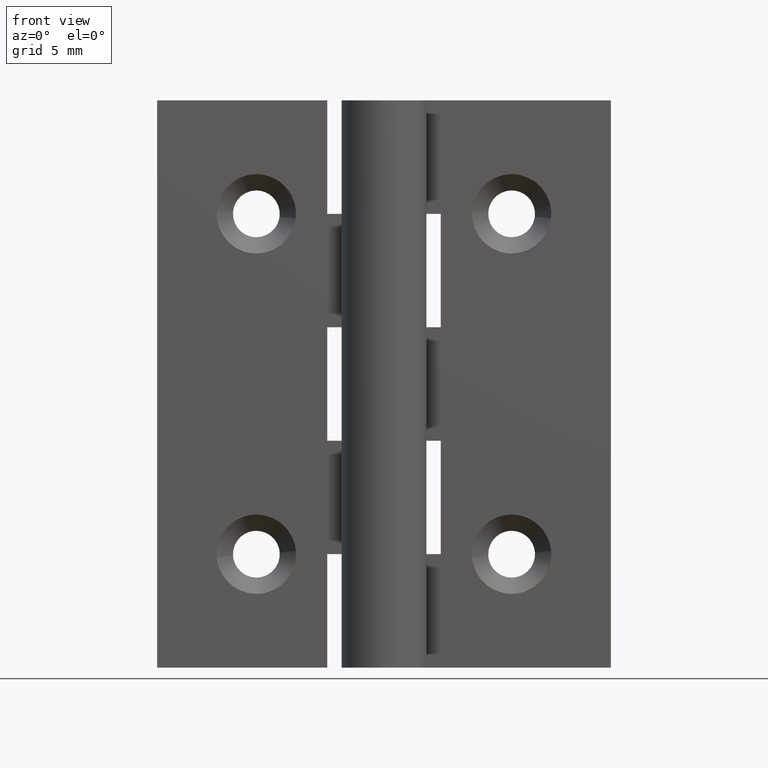
[diagram: clean part render]
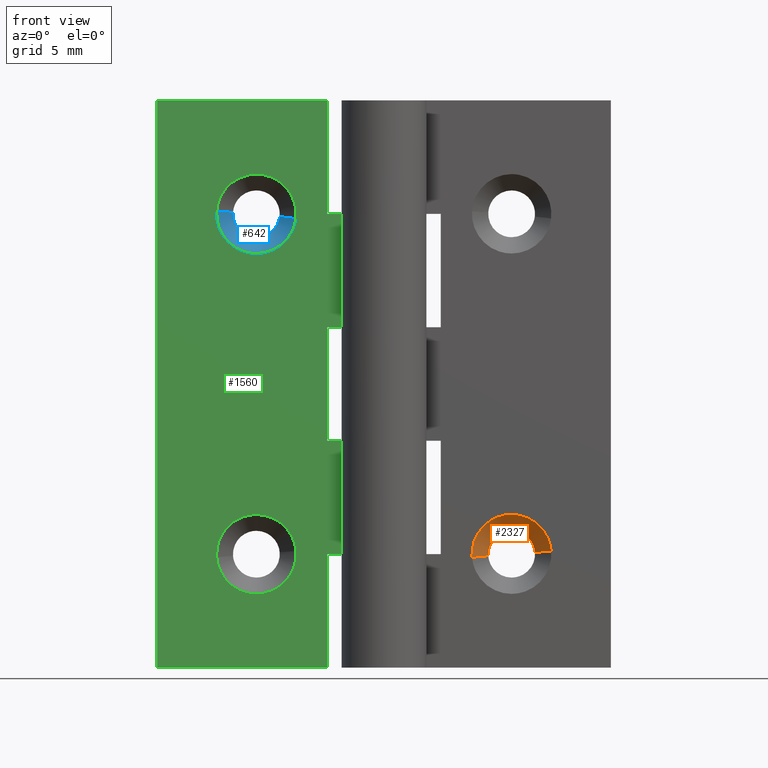
[diagram: same view with three faces highlighted in distinct colors, each labeled with its STEP entity id]
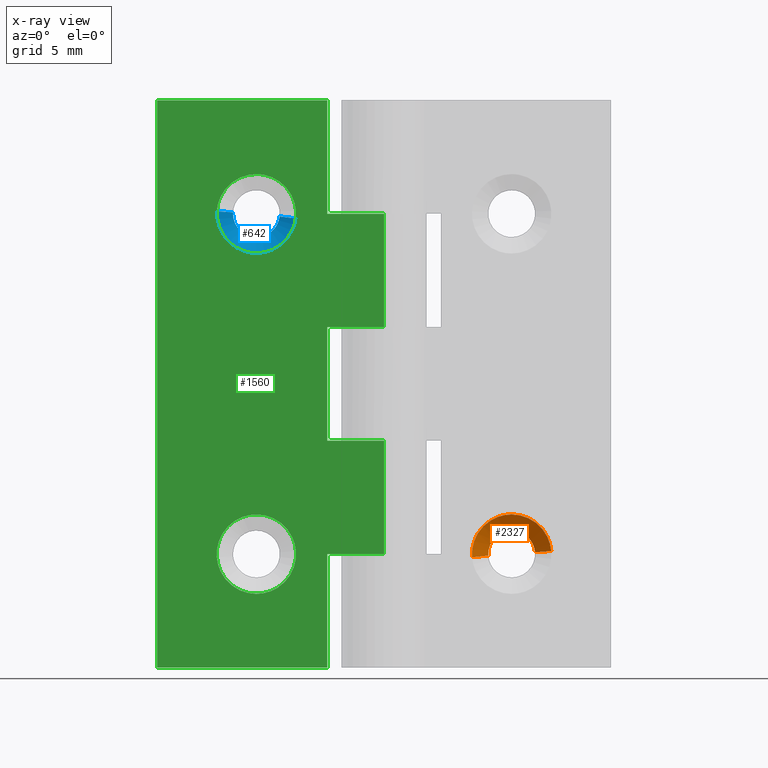
[diagram: x-ray of the same camera — body ghosted, the three highlighted faces saturated]
A machine part, front view with three faces highlighted in distinct colors.
The next image is the same camera in x-ray (body ghosted, the three faces saturated) — at least one of them is partly hidden behind the body in this view.
Their STEP definitions:

[orange] entity #2327 — the highlighted face is a freeform B-spline surface patch.
#2132=CARTESIAN_POINT('',(7.353077569980141,2.649999999998791,7.899270116164847));
#2133=VERTEX_POINT('',#2132);
#2177=CARTESIAN_POINT('',(10.644913600664211,2.649999999988415,8.129457508040826));
#2178=VERTEX_POINT('',#2177);
#2194=CARTESIAN_POINT('',(9.0,2.650000000000000,9.650000000000000));
#2195=VERTEX_POINT('',#2194);
#2196=CARTESIAN_POINT('',(9.0,2.650000000000000,9.650000000000000));
#2197=CARTESIAN_POINT('',(10.525244311070530,2.650000000000000,9.650000000000002));
#2198=CARTESIAN_POINT('',(10.644913600664214,2.649999999988415,8.129457508040826));
#2206=(BOUNDED_CURVE()B_SPLINE_CURVE(2,(#2196,#2197,#2198),.UNSPECIFIED.,.F.,.U.)B_SPLINE_CURVE_WITH_KNOTS((3,3),(0.0,0.236331300614222),.UNSPECIFIED.)CURVE()GEOMETRIC_REPRESENTATION_ITEM()RATIONAL_B_SPLINE_CURVE((1.0,0.723120658626923,0.969723356133114))REPRESENTATION_ITEM(''));
#2207=EDGE_CURVE('',#2195,#2178,#2206,.T.);
#2209=CARTESIAN_POINT('',(7.353077569980141,2.649999999998791,7.899270116164847));
#2210=CARTESIAN_POINT('',(7.349999999999998,2.650000000000000,7.949588044045367));
#2211=CARTESIAN_POINT('',(7.349999999999999,2.650000000000000,8.0));
#2212=CARTESIAN_POINT('',(7.349999999999999,2.650000000000000,9.650000000000000));
#2213=CARTESIAN_POINT('',(9.0,2.650000000000000,9.650000000000000));
#2221=(BOUNDED_CURVE()B_SPLINE_CURVE(2,(#2209,#2210,#2211,#2212,#2213),.UNSPECIFIED.,.F.,.U.)B_SPLINE_CURVE_WITH_KNOTS((3,2,3),(0.739332983866061,0.750000000000000,1.0),.UNSPECIFIED.)CURVE()GEOMETRIC_REPRESENTATION_ITEM()RATIONAL_B_SPLINE_CURVE((0.976072088017753,0.987502813237582,1.0,0.707106781186548,1.0))REPRESENTATION_ITEM(''));
#2222=EDGE_CURVE('',#2133,#2195,#2221,.T.);
#2261=CARTESIAN_POINT('',(10.616252227314840,2.678750000000000,8.127201808948769));
#2262=CARTESIAN_POINT('',(10.489050418366066,2.678750000000001,9.743454036263605));
#2263=CARTESIAN_POINT('',(8.872798191051231,2.678750000000000,9.616252227314835));
#2264=CARTESIAN_POINT('',(7.256545963736396,2.678750000000001,9.489050418366064));
#2265=CARTESIAN_POINT('',(7.383747772685166,2.678750000000000,7.872798191051230));
#2266=CARTESIAN_POINT('',(11.820746442131210,1.470531250000000,8.221997559515197));
#2267=CARTESIAN_POINT('',(11.598748882616009,1.470531250000000,11.042744001646401));
#2268=CARTESIAN_POINT('',(8.778002440484803,1.470531250000000,10.820746442131210));
#2269=CARTESIAN_POINT('',(5.957255998353596,1.470531250000000,10.598748882616007));
#2270=CARTESIAN_POINT('',(6.179253557868795,1.470531250000000,7.778002440484802));
#2278=(BOUNDED_SURFACE()B_SPLINE_SURFACE(2,1,((#2261,#2266),(#2262,#2267),(#2263,#2268),(#2264,#2269),(#2265,#2270)),.UNSPECIFIED.,.F.,.F.,.U.)B_SPLINE_SURFACE_WITH_KNOTS((3,2,3),(2,2),(0.0,4.688017322243393,9.376034644486786),(0.0,1.0),.UNSPECIFIED.)GEOMETRIC_REPRESENTATION_ITEM()RATIONAL_B_SPLINE_SURFACE(((1.0,1.0),(0.707106781186548,0.707106781186548),(1.0,1.0),(0.707106781186548,0.707106781186548),(1.0,1.0)))REPRESENTATION_ITEM('')SURFACE());
#2279=ORIENTED_EDGE('',*,*,#2207,.T.);
#2280=CARTESIAN_POINT('',(11.791368534464549,1.499999999970239,8.219685468267475));
#2281=VERTEX_POINT('',#2280);
#2282=CARTESIAN_POINT('',(10.644913600664211,2.649999999988415,8.129457508040826));
#2283=CARTESIAN_POINT('',(11.791368534464549,1.499999999970239,8.219685468267475));
#2284=QUASI_UNIFORM_CURVE('',1,(#2282,#2283),.UNSPECIFIED.,.F.,.U.);
#2285=EDGE_CURVE('',#2178,#2281,#2284,.T.);
#2286=ORIENTED_EDGE('',*,*,#2285,.T.);
#2287=CARTESIAN_POINT('',(9.0,1.500000000000000,10.800000000000001));
#2288=VERTEX_POINT('',#2287);
#2289=CARTESIAN_POINT('',(9.0,1.500000000000000,10.800000000000001));
#2290=CARTESIAN_POINT('',(11.588293376220381,1.500000000000000,10.800000000000001));
#2291=CARTESIAN_POINT('',(11.791368534464542,1.499999999970240,8.219685468267475));
#2299=(BOUNDED_CURVE()B_SPLINE_CURVE(2,(#2289,#2290,#2291),.UNSPECIFIED.,.F.,.U.)B_SPLINE_CURVE_WITH_KNOTS((3,3),(0.0,0.236331300604864),.UNSPECIFIED.)CURVE()GEOMETRIC_REPRESENTATION_ITEM()RATIONAL_B_SPLINE_CURVE((1.0,0.723120658637887,0.969723356113585))REPRESENTATION_ITEM(''));
#2300=EDGE_CURVE('',#2288,#2281,#2299,.T.);
#2301=ORIENTED_EDGE('',*,*,#2300,.F.);
#2302=CARTESIAN_POINT('',(6.208631465535451,1.499999999970238,7.780314531732524));
#2303=VERTEX_POINT('',#2302);
#2304=CARTESIAN_POINT('',(6.208631465535451,1.499999999970238,7.780314531732524));
#2305=CARTESIAN_POINT('',(6.199999999999999,1.500000000000000,7.889987700150297));
#2306=CARTESIAN_POINT('',(6.199999999999999,1.500000000000000,8.0));
#2307=CARTESIAN_POINT('',(6.199999999999999,1.500000000000000,10.800000000000001));
#2308=CARTESIAN_POINT('',(9.0,1.500000000000000,10.800000000000001));
#2316=(BOUNDED_CURVE()B_SPLINE_CURVE(2,(#2304,#2305,#2306,#2307,#2308),.UNSPECIFIED.,.F.,.U.)B_SPLINE_CURVE_WITH_KNOTS((3,2,3),(0.736331300604864,0.750000000000000,1.0),.UNSPECIFIED.)CURVE()GEOMETRIC_REPRESENTATION_ITEM()RATIONAL_B_SPLINE_CURVE((0.969723356113585,0.983986122548661,1.0,0.707106781186547,1.0))REPRESENTATION_ITEM(''));
#2317=EDGE_CURVE('',#2303,#2288,#2316,.T.);
#2318=ORIENTED_EDGE('',*,*,#2317,.F.);
#2319=CARTESIAN_POINT('',(7.353077569980141,2.649999999998791,7.899270116164847));
#2320=CARTESIAN_POINT('',(6.208631465535451,1.499999999970238,7.780314531732524));
#2321=QUASI_UNIFORM_CURVE('',1,(#2319,#2320),.UNSPECIFIED.,.F.,.U.);
#2322=EDGE_CURVE('',#2133,#2303,#2321,.T.);
#2323=ORIENTED_EDGE('',*,*,#2322,.F.);
#2324=ORIENTED_EDGE('',*,*,#2222,.T.);
#2325=EDGE_LOOP('',(#2279,#2286,#2301,#2318,#2323,#2324));
#2326=FACE_OUTER_BOUND('',#2325,.T.);
#2327=ADVANCED_FACE('',(#2326),#2278,.F.);

[blue] entity #642 — the highlighted face is a freeform B-spline surface patch.
#321=CARTESIAN_POINT('',(-7.361534281498922,2.649999999982358,31.805243512675531));
#322=VERTEX_POINT('',#321);
#388=CARTESIAN_POINT('',(-10.646922417411650,2.649999999970862,32.100730090455343));
#389=VERTEX_POINT('',#388);
#403=CARTESIAN_POINT('',(-9.0,2.650000000000000,30.350000000000001));
#404=VERTEX_POINT('',#403);
#405=CARTESIAN_POINT('',(-10.646922417411643,2.649999999970862,32.100730090455343));
#406=CARTESIAN_POINT('',(-10.650000000000002,2.650000000000000,32.050412059664353));
#407=CARTESIAN_POINT('',(-10.650000000000000,2.650000000000000,32.0));
#408=CARTESIAN_POINT('',(-10.650000000000000,2.650000000000000,30.350000000000001));
#409=CARTESIAN_POINT('',(-9.0,2.650000000000000,30.350000000000001));
#417=(BOUNDED_CURVE()B_SPLINE_CURVE(2,(#405,#406,#407,#408,#409),.UNSPECIFIED.,.F.,.U.)B_SPLINE_CURVE_WITH_KNOTS((3,2,3),(0.739332962195649,0.750000000000000,1.0),.UNSPECIFIED.)CURVE()GEOMETRIC_REPRESENTATION_ITEM()RATIONAL_B_SPLINE_CURVE((0.976072041573930,0.987502787849115,1.0,0.707106781186548,1.0))REPRESENTATION_ITEM(''));
#418=EDGE_CURVE('',#389,#404,#417,.T.);
#420=CARTESIAN_POINT('',(-9.0,2.650000000000000,30.350000000000001));
#421=CARTESIAN_POINT('',(-7.534512032430169,2.650000000000000,30.350000000000009));
#422=CARTESIAN_POINT('',(-7.361534281498922,2.649999999982358,31.805243512675531));
#430=(BOUNDED_CURVE()B_SPLINE_CURVE(2,(#420,#421,#422),.UNSPECIFIED.,.F.,.U.)B_SPLINE_CURVE_WITH_KNOTS((3,3),(0.0,0.229562473487024),.UNSPECIFIED.)CURVE()GEOMETRIC_REPRESENTATION_ITEM()RATIONAL_B_SPLINE_CURVE((1.0,0.731050832886431,0.956026754131788))REPRESENTATION_ITEM(''));
#431=EDGE_CURVE('',#404,#322,#430,.T.);
#538=CARTESIAN_POINT('',(-6.219573317274596,1.499999988088149,31.669504116977279));
#539=VERTEX_POINT('',#538);
#540=CARTESIAN_POINT('',(-7.361534281498922,2.649999999982358,31.805243512675531));
#541=CARTESIAN_POINT('',(-6.219573317274596,1.499999988088149,31.669504116977279));
#542=QUASI_UNIFORM_CURVE('',1,(#540,#541),.UNSPECIFIED.,.F.,.U.);
#543=EDGE_CURVE('',#322,#539,#542,.T.);
#562=CARTESIAN_POINT('',(-11.794777435587550,1.499999999988166,32.170935910788053));
#563=VERTEX_POINT('',#562);
#577=CARTESIAN_POINT('',(-10.646922417411650,2.649999999970862,32.100730090455343));
#578=CARTESIAN_POINT('',(-11.794777435587550,1.499999999988166,32.170935910788053));
#579=QUASI_UNIFORM_CURVE('',1,(#577,#578),.UNSPECIFIED.,.F.,.U.);
#580=EDGE_CURVE('',#389,#563,#579,.T.);
#588=CARTESIAN_POINT('',(-10.618226041941449,2.678750000000000,32.098974944720887));
#589=CARTESIAN_POINT('',(-10.717200986662338,2.678750000000001,30.480748902779439));
#590=CARTESIAN_POINT('',(-9.098974944720887,2.678750000000000,30.381773958058549));
#591=CARTESIAN_POINT('',(-7.570797615476458,2.678750000000000,30.288306628547389));
#592=CARTESIAN_POINT('',(-7.390083305382908,2.678750000000000,31.808636997062731));
#593=CARTESIAN_POINT('',(-11.824191220422220,1.470531250000000,32.172734934847007));
#594=CARTESIAN_POINT('',(-11.996926155269238,1.470531250000000,29.348543714424792));
#595=CARTESIAN_POINT('',(-9.172734934847018,1.470531250000000,29.175808779577778));
#596=CARTESIAN_POINT('',(-6.505700240903723,1.470531250000000,29.012685949663972));
#597=CARTESIAN_POINT('',(-6.190310576701706,1.470531250000000,31.666025821608532));
#605=(BOUNDED_SURFACE()B_SPLINE_SURFACE(2,1,((#588,#593),(#589,#594),(#590,#595),(#591,#596),(#592,#597)),.UNSPECIFIED.,.F.,.F.,.U.)B_SPLINE_SURFACE_WITH_KNOTS((3,2,3),(2,2),(0.0,4.688017322243390,9.188513951597043),(0.0,1.0),.UNSPECIFIED.)GEOMETRIC_REPRESENTATION_ITEM()RATIONAL_B_SPLINE_SURFACE(((1.0,1.0),(0.707106781186548,0.707106781186548),(1.0,1.0),(0.718822509939086,0.718822509939086),(0.977505800795127,0.977505800795127)))REPRESENTATION_ITEM('')SURFACE());
#606=ORIENTED_EDGE('',*,*,#431,.F.);
#607=ORIENTED_EDGE('',*,*,#418,.F.);
#608=ORIENTED_EDGE('',*,*,#580,.T.);
#609=CARTESIAN_POINT('',(-9.0,1.500000000000000,29.199999999999999));
#610=VERTEX_POINT('',#609);
#611=CARTESIAN_POINT('',(-11.794777435587553,1.499999999988165,32.170935910788039));
#612=CARTESIAN_POINT('',(-11.799999999999999,1.500000000000000,32.085547737326024));
#613=CARTESIAN_POINT('',(-11.800000000000001,1.500000000000000,32.0));
#614=CARTESIAN_POINT('',(-11.799999999999997,1.500000000000000,29.199999999999989));
#615=CARTESIAN_POINT('',(-9.0,1.500000000000000,29.199999999999999));
#623=(BOUNDED_CURVE()B_SPLINE_CURVE(2,(#611,#612,#613,#614,#615),.UNSPECIFIED.,.F.,.U.)B_SPLINE_CURVE_WITH_KNOTS((3,2,3),(0.739332962230889,0.750000000000000,1.0),.UNSPECIFIED.)CURVE()GEOMETRIC_REPRESENTATION_ITEM()RATIONAL_B_SPLINE_CURVE((0.976072041649457,0.987502787890402,1.0,0.707106781186547,1.0))REPRESENTATION_ITEM(''));
#624=EDGE_CURVE('',#563,#610,#623,.T.);
#625=ORIENTED_EDGE('',*,*,#624,.T.);
#626=CARTESIAN_POINT('',(-9.0,1.500000000000000,29.199999999999999));
#627=CARTESIAN_POINT('',(-6.513111371611748,1.500000000000000,29.199999999999999));
#628=CARTESIAN_POINT('',(-6.219573317274596,1.499999988088150,31.669504116977283));
#636=(BOUNDED_CURVE()B_SPLINE_CURVE(2,(#626,#627,#628),.UNSPECIFIED.,.F.,.U.)B_SPLINE_CURVE_WITH_KNOTS((3,3),(0.0,0.229562470527811),.UNSPECIFIED.)CURVE()GEOMETRIC_REPRESENTATION_ITEM()RATIONAL_B_SPLINE_CURVE((1.0,0.731050836353364,0.956026748331610))REPRESENTATION_ITEM(''));
#637=EDGE_CURVE('',#610,#539,#636,.T.);
#638=ORIENTED_EDGE('',*,*,#637,.T.);
#639=ORIENTED_EDGE('',*,*,#543,.F.);
#640=EDGE_LOOP('',(#606,#607,#608,#625,#638,#639));
#641=FACE_OUTER_BOUND('',#640,.T.);
#642=ADVANCED_FACE('',(#641),#605,.F.);

[green] entity #1560 — the highlighted face is a freeform B-spline surface patch.
#538=CARTESIAN_POINT('',(-6.219573317274596,1.499999988088149,31.669504116977279));
#539=VERTEX_POINT('',#538);
#545=CARTESIAN_POINT('',(-9.0,1.500000000000000,34.799999999999997));
#546=VERTEX_POINT('',#545);
#547=CARTESIAN_POINT('',(-6.219573317274596,1.499999988088150,31.669504116977286));
#548=CARTESIAN_POINT('',(-6.200000000000000,1.500000000000000,31.834172440137028));
#549=CARTESIAN_POINT('',(-6.199999999999999,1.500000000000000,32.0));
#550=CARTESIAN_POINT('',(-6.199999999999999,1.500000000000000,34.799999999999997));
#551=CARTESIAN_POINT('',(-9.0,1.500000000000000,34.799999999999997));
#559=(BOUNDED_CURVE()B_SPLINE_CURVE(2,(#547,#548,#549,#550,#551),.UNSPECIFIED.,.F.,.U.)B_SPLINE_CURVE_WITH_KNOTS((3,2,3),(0.229562470527811,0.250000000000000,0.500000000000000),.UNSPECIFIED.)CURVE()GEOMETRIC_REPRESENTATION_ITEM()RATIONAL_B_SPLINE_CURVE((0.956026748331610,0.976055944833183,1.0,0.707106781186547,1.0))REPRESENTATION_ITEM(''));
#560=EDGE_CURVE('',#539,#546,#559,.T.);
#562=CARTESIAN_POINT('',(-11.794777435587550,1.499999999988166,32.170935910788053));
#563=VERTEX_POINT('',#562);
#564=CARTESIAN_POINT('',(-9.0,1.500000000000000,34.799999999999997));
#565=CARTESIAN_POINT('',(-11.633976987166504,1.500000000000000,34.799999999999997));
#566=CARTESIAN_POINT('',(-11.794777435587550,1.499999999988166,32.170935910788039));
#574=(BOUNDED_CURVE()B_SPLINE_CURVE(2,(#564,#565,#566),.UNSPECIFIED.,.F.,.U.)B_SPLINE_CURVE_WITH_KNOTS((3,3),(0.500000000000000,0.739332962230889),.UNSPECIFIED.)CURVE()GEOMETRIC_REPRESENTATION_ITEM()RATIONAL_B_SPLINE_CURVE((1.0,0.719603993296145,0.976072041649457))REPRESENTATION_ITEM(''));
#575=EDGE_CURVE('',#546,#563,#574,.T.);
#609=CARTESIAN_POINT('',(-9.0,1.500000000000000,29.199999999999999));
#610=VERTEX_POINT('',#609);
#611=CARTESIAN_POINT('',(-11.794777435587553,1.499999999988165,32.170935910788039));
#612=CARTESIAN_POINT('',(-11.799999999999999,1.500000000000000,32.085547737326024));
#613=CARTESIAN_POINT('',(-11.800000000000001,1.500000000000000,32.0));
#614=CARTESIAN_POINT('',(-11.799999999999997,1.500000000000000,29.199999999999989));
#615=CARTESIAN_POINT('',(-9.0,1.500000000000000,29.199999999999999));
#623=(BOUNDED_CURVE()B_SPLINE_CURVE(2,(#611,#612,#613,#614,#615),.UNSPECIFIED.,.F.,.U.)B_SPLINE_CURVE_WITH_KNOTS((3,2,3),(0.739332962230889,0.750000000000000,1.0),.UNSPECIFIED.)CURVE()GEOMETRIC_REPRESENTATION_ITEM()RATIONAL_B_SPLINE_CURVE((0.976072041649457,0.987502787890402,1.0,0.707106781186547,1.0))REPRESENTATION_ITEM(''));
#624=EDGE_CURVE('',#563,#610,#623,.T.);
#626=CARTESIAN_POINT('',(-9.0,1.500000000000000,29.199999999999999));
#627=CARTESIAN_POINT('',(-6.513111371611748,1.500000000000000,29.199999999999999));
#628=CARTESIAN_POINT('',(-6.219573317274596,1.499999988088150,31.669504116977283));
#636=(BOUNDED_CURVE()B_SPLINE_CURVE(2,(#626,#627,#628),.UNSPECIFIED.,.F.,.U.)B_SPLINE_CURVE_WITH_KNOTS((3,3),(0.0,0.229562470527811),.UNSPECIFIED.)CURVE()GEOMETRIC_REPRESENTATION_ITEM()RATIONAL_B_SPLINE_CURVE((1.0,0.731050836353364,0.956026748331610))REPRESENTATION_ITEM(''));
#637=EDGE_CURVE('',#610,#539,#636,.T.);
#867=CARTESIAN_POINT('',(-6.208631465535452,1.499999999970238,8.219685468267475));
#868=VERTEX_POINT('',#867);
#874=CARTESIAN_POINT('',(-9.0,1.500000000000000,10.800000000000001));
#875=VERTEX_POINT('',#874);
#876=CARTESIAN_POINT('',(-9.0,1.500000000000000,10.800000000000001));
#877=CARTESIAN_POINT('',(-6.411706623779614,1.500000000000000,10.800000000000001));
#878=CARTESIAN_POINT('',(-6.208631465535452,1.499999999970238,8.219685468267475));
#886=(BOUNDED_CURVE()B_SPLINE_CURVE(2,(#876,#877,#878),.UNSPECIFIED.,.F.,.U.)B_SPLINE_CURVE_WITH_KNOTS((3,3),(0.0,0.236331300604865),.UNSPECIFIED.)CURVE()GEOMETRIC_REPRESENTATION_ITEM()RATIONAL_B_SPLINE_CURVE((1.0,0.723120658637886,0.969723356113585))REPRESENTATION_ITEM(''));
#887=EDGE_CURVE('',#875,#868,#886,.T.);
#889=CARTESIAN_POINT('',(-11.791368534464549,1.499999999970238,7.780314531732524));
#890=VERTEX_POINT('',#889);
#891=CARTESIAN_POINT('',(-11.791368534464544,1.499999999970238,7.780314531732524));
#892=CARTESIAN_POINT('',(-11.800000000000002,1.500000000000000,7.889987700150297));
#893=CARTESIAN_POINT('',(-11.800000000000001,1.500000000000000,8.0));
#894=CARTESIAN_POINT('',(-11.799999999999997,1.500000000000000,10.800000000000001));
#895=CARTESIAN_POINT('',(-9.0,1.500000000000000,10.800000000000001));
#903=(BOUNDED_CURVE()B_SPLINE_CURVE(2,(#891,#892,#893,#894,#895),.UNSPECIFIED.,.F.,.U.)B_SPLINE_CURVE_WITH_KNOTS((3,2,3),(0.736331300604864,0.750000000000000,1.0),.UNSPECIFIED.)CURVE()GEOMETRIC_REPRESENTATION_ITEM()RATIONAL_B_SPLINE_CURVE((0.969723356113585,0.983986122548661,1.0,0.707106781186547,1.0))REPRESENTATION_ITEM(''));
#904=EDGE_CURVE('',#890,#875,#903,.T.);
#941=CARTESIAN_POINT('',(-9.0,1.500000000000000,5.200000000000000));
#942=VERTEX_POINT('',#941);
#943=CARTESIAN_POINT('',(-9.0,1.500000000000000,5.200000000000000));
#944=CARTESIAN_POINT('',(-11.588293376220378,1.499999999999999,5.200000000000001));
#945=CARTESIAN_POINT('',(-11.791368534464553,1.499999999970238,7.780314531732524));
#953=(BOUNDED_CURVE()B_SPLINE_CURVE(2,(#943,#944,#945),.UNSPECIFIED.,.F.,.U.)B_SPLINE_CURVE_WITH_KNOTS((3,3),(0.500000000000000,0.736331300604864),.UNSPECIFIED.)CURVE()GEOMETRIC_REPRESENTATION_ITEM()RATIONAL_B_SPLINE_CURVE((1.0,0.723120658637887,0.969723356113584))REPRESENTATION_ITEM(''));
#954=EDGE_CURVE('',#942,#890,#953,.T.);
#956=CARTESIAN_POINT('',(-6.208631465535452,1.499999999970238,8.219685468267475));
#957=CARTESIAN_POINT('',(-6.200000000000001,1.500000000000000,8.110012299849704));
#958=CARTESIAN_POINT('',(-6.199999999999999,1.500000000000000,8.0));
#959=CARTESIAN_POINT('',(-6.199999999999999,1.500000000000000,5.200000000000000));
#960=CARTESIAN_POINT('',(-9.0,1.500000000000000,5.200000000000000));
#968=(BOUNDED_CURVE()B_SPLINE_CURVE(2,(#956,#957,#958,#959,#960),.UNSPECIFIED.,.F.,.U.)B_SPLINE_CURVE_WITH_KNOTS((3,2,3),(0.236331300604864,0.250000000000000,0.500000000000000),.UNSPECIFIED.)CURVE()GEOMETRIC_REPRESENTATION_ITEM()RATIONAL_B_SPLINE_CURVE((0.969723356113585,0.983986122548661,1.0,0.707106781186547,1.0))REPRESENTATION_ITEM(''));
#969=EDGE_CURVE('',#868,#942,#968,.T.);
#989=CARTESIAN_POINT('',(-4.0,1.499999999999946,32.0));
#990=VERTEX_POINT('',#989);
#996=CARTESIAN_POINT('',(9.184352E-017,1.500000000000000,32.0));
#997=VERTEX_POINT('',#996);
#998=CARTESIAN_POINT('',(9.184352E-017,1.500000000000000,32.0));
#999=CARTESIAN_POINT('',(-4.0,1.499999999999946,32.0));
#1000=QUASI_UNIFORM_CURVE('',1,(#998,#999),.UNSPECIFIED.,.F.,.U.);
#1001=EDGE_CURVE('',#997,#990,#1000,.T.);
#1066=CARTESIAN_POINT('',(-4.0,1.499999999999946,40.0));
#1067=VERTEX_POINT('',#1066);
#1073=CARTESIAN_POINT('',(-4.0,1.499999999999946,32.0));
#1074=CARTESIAN_POINT('',(-4.0,1.499999999999946,40.0));
#1075=QUASI_UNIFORM_CURVE('',1,(#1073,#1074),.UNSPECIFIED.,.F.,.U.);
#1076=EDGE_CURVE('',#990,#1067,#1075,.T.);
#1116=CARTESIAN_POINT('',(-4.0,1.500000000000000,16.0));
#1117=VERTEX_POINT('',#1116);
#1123=CARTESIAN_POINT('',(9.184352E-017,1.500000000000000,16.0));
#1124=VERTEX_POINT('',#1123);
#1125=CARTESIAN_POINT('',(-4.0,1.500000000000000,16.0));
#1126=CARTESIAN_POINT('',(9.184352E-017,1.500000000000000,16.0));
#1127=QUASI_UNIFORM_CURVE('',1,(#1125,#1126),.UNSPECIFIED.,.F.,.U.);
#1128=EDGE_CURVE('',#1117,#1124,#1127,.T.);
#1194=CARTESIAN_POINT('',(9.184352E-017,1.500000000000000,24.0));
#1195=VERTEX_POINT('',#1194);
#1215=CARTESIAN_POINT('',(-4.0,1.499999999999946,24.0));
#1216=VERTEX_POINT('',#1215);
#1217=CARTESIAN_POINT('',(9.184352E-017,1.500000000000000,24.0));
#1218=CARTESIAN_POINT('',(-4.0,1.499999999999946,24.0));
#1219=QUASI_UNIFORM_CURVE('',1,(#1217,#1218),.UNSPECIFIED.,.F.,.U.);
#1220=EDGE_CURVE('',#1195,#1216,#1219,.T.);
#1242=CARTESIAN_POINT('',(-4.0,1.499999999999946,24.0));
#1243=CARTESIAN_POINT('',(-4.0,1.500000000000000,16.0));
#1244=QUASI_UNIFORM_CURVE('',1,(#1242,#1243),.UNSPECIFIED.,.F.,.U.);
#1245=EDGE_CURVE('',#1216,#1117,#1244,.T.);
#1262=CARTESIAN_POINT('',(-4.0,1.500000000000000,0.0));
#1263=VERTEX_POINT('',#1262);
#1278=CARTESIAN_POINT('',(-4.0,1.499999999999946,8.0));
#1279=VERTEX_POINT('',#1278);
#1285=CARTESIAN_POINT('',(-4.0,1.500000000000000,0.0));
#1286=CARTESIAN_POINT('',(-4.0,1.499999999999946,8.0));
#1287=QUASI_UNIFORM_CURVE('',1,(#1285,#1286),.UNSPECIFIED.,.F.,.U.);
#1288=EDGE_CURVE('',#1263,#1279,#1287,.T.);
#1328=CARTESIAN_POINT('',(9.184352E-017,1.500000000000000,8.0));
#1329=VERTEX_POINT('',#1328);
#1349=CARTESIAN_POINT('',(-4.0,1.499999999999946,8.0));
#1350=CARTESIAN_POINT('',(9.184352E-017,1.500000000000000,8.0));
#1351=QUASI_UNIFORM_CURVE('',1,(#1349,#1350),.UNSPECIFIED.,.F.,.U.);
#1352=EDGE_CURVE('',#1279,#1329,#1351,.T.);
#1368=CARTESIAN_POINT('',(-16.0,1.500000000000000,0.0));
#1369=VERTEX_POINT('',#1368);
#1377=CARTESIAN_POINT('',(-16.0,1.500000000000000,40.0));
#1378=VERTEX_POINT('',#1377);
#1379=CARTESIAN_POINT('',(-16.0,1.500000000000000,40.0));
#1380=CARTESIAN_POINT('',(-16.0,1.500000000000000,0.0));
#1381=QUASI_UNIFORM_CURVE('',1,(#1379,#1380),.UNSPECIFIED.,.F.,.U.);
#1382=EDGE_CURVE('',#1378,#1369,#1381,.T.);
#1410=CARTESIAN_POINT('',(-4.0,1.500000000000000,0.0));
#1411=CARTESIAN_POINT('',(-16.0,1.500000000000000,0.0));
#1412=QUASI_UNIFORM_CURVE('',1,(#1410,#1411),.UNSPECIFIED.,.F.,.U.);
#1413=EDGE_CURVE('',#1263,#1369,#1412,.T.);
#1447=CARTESIAN_POINT('',(9.184352E-017,1.500000000000000,16.0));
#1448=CARTESIAN_POINT('',(9.184352E-017,1.500000000000000,8.0));
#1449=QUASI_UNIFORM_CURVE('',1,(#1447,#1448),.UNSPECIFIED.,.F.,.U.);
#1450=EDGE_CURVE('',#1124,#1329,#1449,.T.);
#1517=CARTESIAN_POINT('',(-4.0,1.499999999999946,40.0));
#1518=CARTESIAN_POINT('',(-16.0,1.500000000000000,40.0));
#1519=QUASI_UNIFORM_CURVE('',1,(#1517,#1518),.UNSPECIFIED.,.F.,.U.);
#1520=EDGE_CURVE('',#1067,#1378,#1519,.T.);
#1525=CARTESIAN_POINT('',(-16.799199968988891,1.500000000000000,41.997999922472239));
#1526=CARTESIAN_POINT('',(-16.799199968988891,1.500000000000000,-1.998000995355844));
#1527=CARTESIAN_POINT('',(0.799200398142338,1.500000000000000,41.997999922472239));
#1528=CARTESIAN_POINT('',(0.799200398142338,1.500000000000000,-1.998000995355844));
#1529=B_SPLINE_SURFACE_WITH_KNOTS('',1,1,((#1525,#1527),(#1526,#1528)),.UNSPECIFIED.,.F.,.F.,.U.,(2,2),(2,2),(0.0,43.996000917828077),(0.0,17.598400367131230),.UNSPECIFIED.);
#1530=ORIENTED_EDGE('',*,*,#1001,.T.);
#1531=ORIENTED_EDGE('',*,*,#1076,.T.);
#1532=ORIENTED_EDGE('',*,*,#1520,.T.);
#1533=ORIENTED_EDGE('',*,*,#1382,.T.);
#1534=ORIENTED_EDGE('',*,*,#1413,.F.);
#1535=ORIENTED_EDGE('',*,*,#1288,.T.);
#1536=ORIENTED_EDGE('',*,*,#1352,.T.);
#1537=ORIENTED_EDGE('',*,*,#1450,.F.);
#1538=ORIENTED_EDGE('',*,*,#1128,.F.);
#1539=ORIENTED_EDGE('',*,*,#1245,.F.);
#1540=ORIENTED_EDGE('',*,*,#1220,.F.);
#1541=CARTESIAN_POINT('',(9.184352E-017,1.500000000000000,32.0));
#1542=CARTESIAN_POINT('',(9.184352E-017,1.500000000000000,24.0));
#1543=QUASI_UNIFORM_CURVE('',1,(#1541,#1542),.UNSPECIFIED.,.F.,.U.);
#1544=EDGE_CURVE('',#997,#1195,#1543,.T.);
#1545=ORIENTED_EDGE('',*,*,#1544,.F.);
#1546=EDGE_LOOP('',(#1530,#1531,#1532,#1533,#1534,#1535,#1536,#1537,#1538,#1539,#1540,#1545));
#1547=FACE_OUTER_BOUND('',#1546,.T.);
#1548=ORIENTED_EDGE('',*,*,#954,.T.);
#1549=ORIENTED_EDGE('',*,*,#904,.T.);
#1550=ORIENTED_EDGE('',*,*,#887,.T.);
#1551=ORIENTED_EDGE('',*,*,#969,.T.);
#1552=EDGE_LOOP('',(#1548,#1549,#1550,#1551));
#1553=FACE_BOUND('',#1552,.T.);
#1554=ORIENTED_EDGE('',*,*,#575,.F.);
#1555=ORIENTED_EDGE('',*,*,#560,.F.);
#1556=ORIENTED_EDGE('',*,*,#637,.F.);
#1557=ORIENTED_EDGE('',*,*,#624,.F.);
#1558=EDGE_LOOP('',(#1554,#1555,#1556,#1557));
#1559=FACE_BOUND('',#1558,.T.);
#1560=ADVANCED_FACE('',(#1547,#1553,#1559),#1529,.T.);